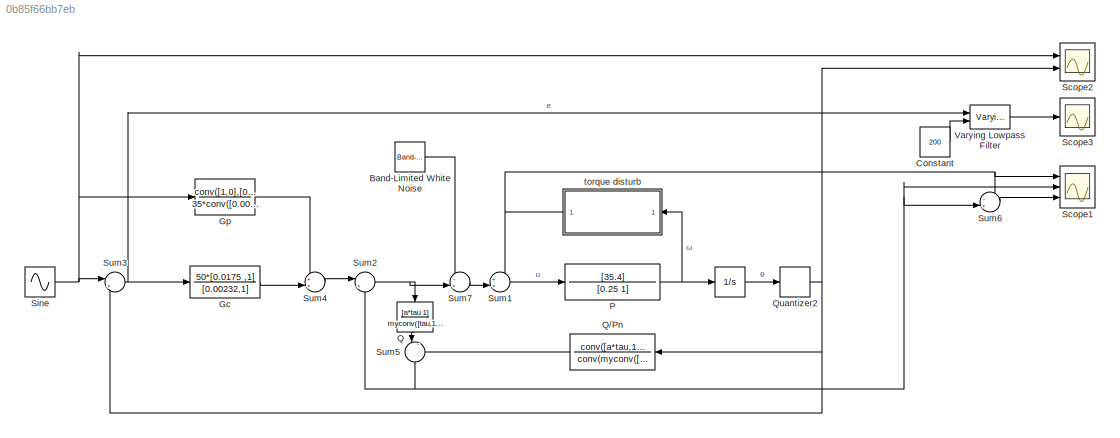
MODEL slx_0b85f66bb7eb
KIND model
CONFIG AbsTol = auto
CONFIG EnableMultiTasking = off
CONFIG FixedStep = auto
CONFIG MaxStep = auto
CONFIG MinStep = auto
CONFIG RelTol = 1e-3
CONFIG SampleTimeConstraint = Unconstrained
CONFIG Solver = VariableStepAuto
CONFIG SolverName = VariableStepAuto
CONFIG StartTime = 0.0
CONFIG StopTime = 1
BLOCK [Integrator]  
  Ports = [1, 1]
BLOCK [TransferFcn]                                                          P
  Denominator = [0.25 1]
  Numerator = [35.4]
BLOCK [Reference] Band-Limited White Noise  REF=simulink/Sources/Band-Limited
White Noise
  Ports = [0, 1]
  SourceBlock = simulink/Sources/Band-Limited\nWhite Noise
  SourceProductBaseCode = SL
  SourceProductName = Simulink
  SourceType = Band-Limited White Noise.
BLOCK [Constant] Constant
  Value = 200
BLOCK [TransferFcn] Gc
  Denominator = [0.00232,1]
  Numerator = 50*[0.0175 ,1]
BLOCK [TransferFcn] Gp
  Denominator = 35*conv([0.001 1],[0.001 1])
  Numerator = conv([1,0],[0.2 1])
BLOCK [TransferFcn] Q
  Denominator = myconv([tau,1],[tau,1],[tau,1])
  Numerator = [a*tau 1]
BLOCK [TransferFcn] Q//Pn
  Denominator = conv(myconv([tau,1],[tau,1],[tau,1]),[35])
  Numerator = conv([a*tau,1],[0.2,1,0])
BLOCK [Quantizer] Quantizer2
  QuantizationInterval = 1/1800
BLOCK [Scope] Scope1
  Floating = off
  NumInputPorts = 3
  Ports = [3]
  ScopeSpecificationString = Simulink.scopes.TimeScopeBlockCfg('CurrentConfiguration', extmgr.ConfigurationSet(extmgr.Configuration('Core','General UI',true),extmgr.Configuration('Core','Source UI',true),extmgr.Configuration('Sources','WiredSimulink',true,'DataLoggingVariableName','ScopeData1','DataLoggingSaveFormat','StructureWithTime'),extmgr.Configuration('Visuals','Time Domain',true,'SerializedDisplays',{struct('MinYLimRe...<+1594ch>
BLOCK [Scope] Scope2
  Floating = off
  NumInputPorts = 2
  Ports = [2]
  ScopeSpecificationString = Simulink.scopes.TimeScopeBlockCfg('CurrentConfiguration', extmgr.ConfigurationSet(extmgr.Configuration('Core','General UI',true),extmgr.Configuration('Core','Source UI',true),extmgr.Configuration('Sources','WiredSimulink',true,'DataLoggingVariableName','out1','DataLoggingSaveFormat','StructureWithTime','DataLogging',true),extmgr.Configuration('Visuals','Time Domain',true,'SerializedDisplays',{stru...<+1569ch>
BLOCK [Scope] Scope3
  Floating = off
  NumInputPorts = 1
  Ports = [1]
  ScopeSpecificationString = Simulink.scopes.TimeScopeBlockCfg('CurrentConfiguration', extmgr.ConfigurationSet(extmgr.Configuration('Core','General UI',true),extmgr.Configuration('Core','Source UI',true),extmgr.Configuration('Sources','WiredSimulink',true,'DataLoggingVariableName','error1','DataLoggingSaveFormat','StructureWithTime','DataLogging',true),extmgr.Configuration('Visuals','Time Domain',true,'SerializedDisplays',{st...<+1526ch>
BLOCK [Sin] Sine 
  Amplitude = 0.5
  Frequency = 10*2*pi
  Ports = [0, 1]
  SampleTime = 0.001
BLOCK [Sum] Sum1
  IconShape = round
  InputSameDT = off
  Inputs = ++|
  OutDataTypeStr = Inherit: Inherit via internal rule
  Ports = [2, 1]
  SaturateOnIntegerOverflow = off
BLOCK [Sum] Sum2
  IconShape = round
  InputSameDT = off
  Inputs = |+-
  OutDataTypeStr = Inherit: Inherit via internal rule
  Ports = [2, 1]
  SaturateOnIntegerOverflow = off
BLOCK [Sum] Sum3
  IconShape = round
  InputSameDT = off
  Inputs = |+-
  OutDataTypeStr = Inherit: Inherit via internal rule
  Ports = [2, 1]
  SaturateOnIntegerOverflow = off
BLOCK [Sum] Sum4
  IconShape = round
  InputSameDT = off
  Inputs = ++|
  OutDataTypeStr = Inherit: Inherit via internal rule
  Ports = [2, 1]
  SaturateOnIntegerOverflow = off
BLOCK [Sum] Sum5
  IconShape = round
  InputSameDT = off
  Inputs = |-+
  OutDataTypeStr = Inherit: Inherit via internal rule
  Ports = [2, 1]
  SaturateOnIntegerOverflow = off
BLOCK [Sum] Sum6
  IconShape = round
  InputSameDT = off
  Inputs = -+|
  OutDataTypeStr = Inherit: Inherit via internal rule
  Ports = [2, 1]
  SaturateOnIntegerOverflow = off
BLOCK [Sum] Sum7
  IconShape = round
  InputSameDT = off
  Inputs = -+|
  OutDataTypeStr = Inherit: Inherit via internal rule
  Ports = [2, 1]
  SaturateOnIntegerOverflow = off
BLOCK [Reference] Varying Lowpass Filter  REF=cstblocks/Linear Parameter Varying/Varying Lowpass Filter
  Ports = [2, 1]
  SourceBlock = cstblocks/Linear Parameter Varying/Varying Lowpass Filter
  SourceProductBaseCode = CT
  SourceProductName = Control System Toolbox
  SourceType = Varying Lowpass Filter
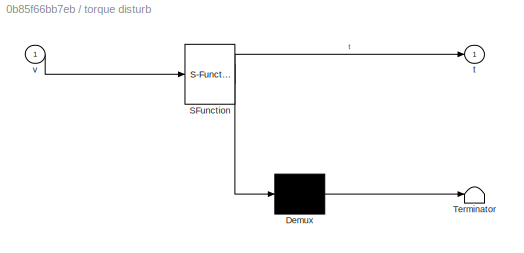
BLOCK [SubSystem] torque disturb
  ErrorFcn = Stateflow.Translate.translate
  PermitHierarchicalResolution = ExplicitOnly
  Ports = [1, 1]
  RequestExecContextInheritance = off
  SFBlockType = MATLAB Function
  TreatAsAtomicUnit = on
BLOCK [Demux] torque disturb/ Demux 
  Outputs = 1
  Ports = [1, 1]
BLOCK [S-Function] torque disturb/ SFunction 
  EnableBusSupport = on
  FunctionName = sf_sfun
  PortCounts = [1 2]
  Ports = [1, 2]
  SFcnIsStateOwnerBlock = off
  SFunctionDeploymentMode = off
  Tag = Stateflow S-Function untitled 1
BLOCK [Terminator] torque disturb/ Terminator 
BLOCK [Outport] torque disturb/t
  IconDisplay = Port number
BLOCK [Inport] torque disturb/v
  IconDisplay = Port number
NET                                                          P:1 ->  :1, torque disturb:1
LINE  :1 -> Quantizer2:1
LINE Band-Limited White Noise:1 -> Sum7:1
LINE Constant:1 -> Varying Lowpass Filter:2
LINE Gc:1 -> Sum4:2
LINE Gp:1 -> Sum4:1
LINE Q//Pn:1 -> Sum5:2
LINE Q:1 -> Sum5:1
NET Quantizer2:1 -> Q//Pn:1, Scope2:2, Sum3:2
NET Sine :1 -> Gp:1, Scope2:1, Sum3:1
LINE Sum1:1 ->                                                          P:1
NET Sum2:1 -> Q:1, Sum7:2
NET Sum3:1 -> Gc:1, Varying Lowpass Filter:1
LINE Sum4:1 -> Sum2:1
NET Sum5:1 -> Scope1:2, Sum2:2, Sum6:2
LINE Sum6:1 -> Scope1:3
LINE Sum7:1 -> Sum1:2
LINE Varying Lowpass Filter:1 -> Scope3:1
NET torque disturb:1 -> Scope1:1, Sum1:1, Sum6:1
note: NET lines group one-source signal fan-out (src -> all destinations, sorted); 1:1 wires keep LINE
CHART torque disturb states=1 transitions=1
  STATE_LABEL 'eML_blk_kernel()'
  STATE_LABEL 'SCRIPT:\nfunction t = fcn(v)\nt = 0.8*v + (1 + 9*exp(-2.2*abs(v)))*sign(v);\nend\n'
